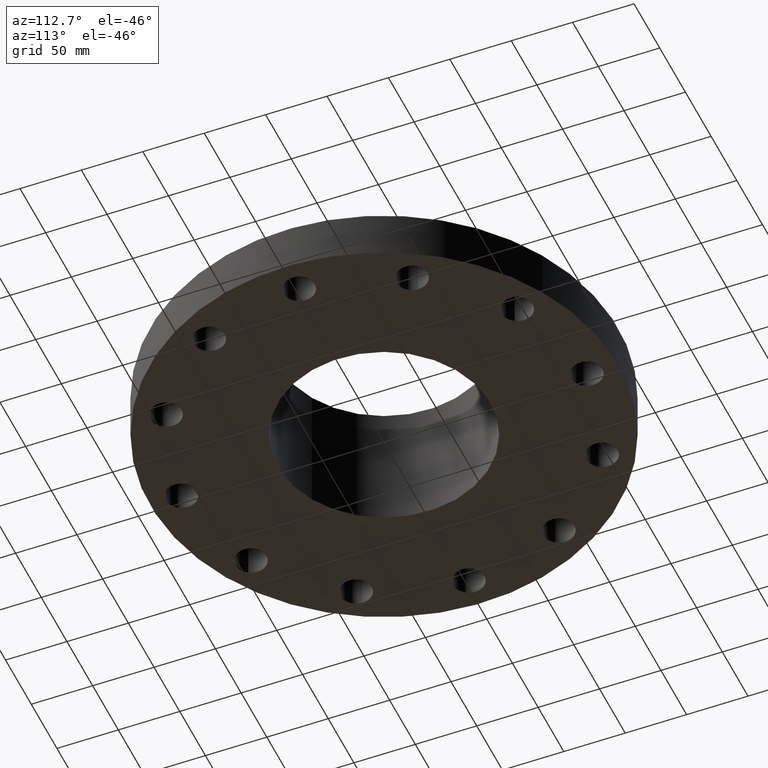
[diagram: clean part render]
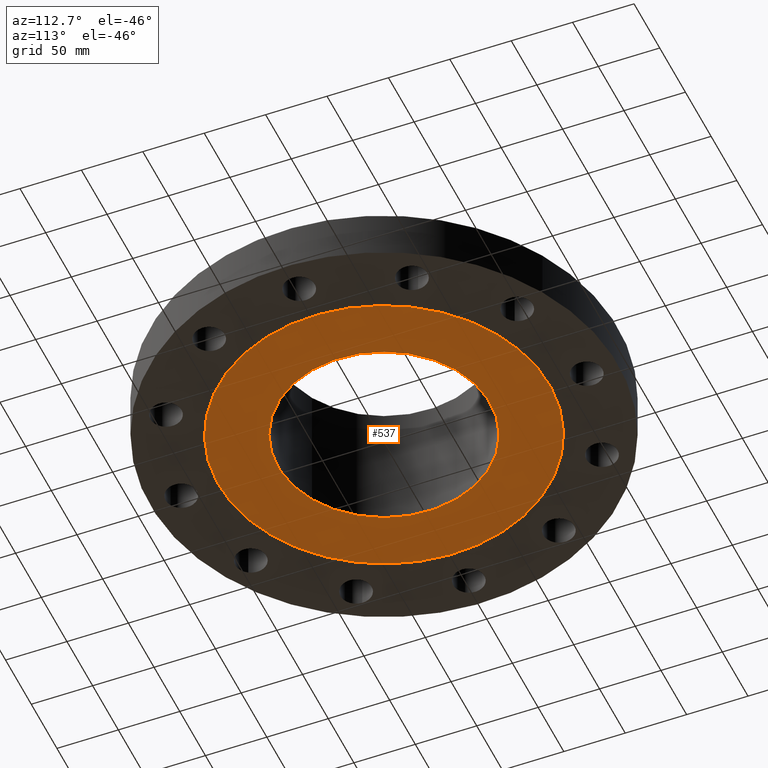
[diagram: same view with one face highlighted and labeled with its STEP entity id]
A machine part, auxiliary view. The second image highlights one B-rep face of the part: STEP entity #537.
In plain terms, the highlighted planar face has unit normal (0, 0, -1).
Its self-contained STEP definition (entity closure, byte-faithful):
#466=AXIS2_PLACEMENT_3D('Circle Axis2P3D',#464,#465,$) ;
#485=AXIS2_PLACEMENT_3D('Circle Axis2P3D',#483,#484,$) ;
#513=AXIS2_PLACEMENT_3D('Plane Axis2P3D',#510,#511,#512) ;
#517=AXIS2_PLACEMENT_3D('Circle Axis2P3D',#515,#516,$) ;
#526=AXIS2_PLACEMENT_3D('Circle Axis2P3D',#524,#525,$) ;
#461=CARTESIAN_POINT('Vertex',(-1.63316309726,-2.98948499709,-1.39870617276E-014)) ;
#464=CARTESIAN_POINT('Axis2P3D Location',(0.,0.,-1.39870617276E-014)) ;
#468=CARTESIAN_POINT('Vertex',(1.63316309726,2.98948499709,-1.39870617276E-014)) ;
#483=CARTESIAN_POINT('Axis2P3D Location',(0.,0.,-1.39870617276E-014)) ;
#510=CARTESIAN_POINT('Axis2P3D Location',(0.,3.40650000001,0.)) ;
#515=CARTESIAN_POINT('Axis2P3D Location',(0.,0.,0.)) ;
#519=CARTESIAN_POINT('Vertex',(-2.54574961,-4.65996340366,0.)) ;
#521=CARTESIAN_POINT('Vertex',(2.54574961,4.65996340366,0.)) ;
#524=CARTESIAN_POINT('Axis2P3D Location',(0.,0.,0.)) ;
#465=DIRECTION('Axis2P3D Direction',(0.,0.,-0.0393700787402)) ;
#484=DIRECTION('Axis2P3D Direction',(0.,0.,-0.0393700787402)) ;
#511=DIRECTION('Axis2P3D Direction',(0.,0.,-0.0393700787402)) ;
#512=DIRECTION('Axis2P3D XDirection',(0.0393700787402,0.,0.)) ;
#516=DIRECTION('Axis2P3D Direction',(0.,0.,-0.0393700787402)) ;
#525=DIRECTION('Axis2P3D Direction',(0.,0.,-0.0393700787402)) ;
#530=ORIENTED_EDGE('',*,*,#523,.T.) ;
#531=ORIENTED_EDGE('',*,*,#528,.T.) ;
#534=ORIENTED_EDGE('',*,*,#487,.F.) ;
#535=ORIENTED_EDGE('',*,*,#470,.F.) ;
#536=FACE_BOUND('',#533,.T.) ;
#537=ADVANCED_FACE('PartBody',(#532,#536),#514,.T.) ;
#467=CIRCLE('generated circle',#466,3.40650000001) ;
#486=CIRCLE('generated circle',#485,3.40650000001) ;
#518=CIRCLE('generated circle',#517,5.31000000002) ;
#527=CIRCLE('generated circle',#526,5.31000000002) ;
#470=EDGE_CURVE('',#462,#469,#467,.T.) ;
#487=EDGE_CURVE('',#469,#462,#486,.T.) ;
#523=EDGE_CURVE('',#520,#522,#518,.T.) ;
#528=EDGE_CURVE('',#522,#520,#527,.T.) ;
#529=EDGE_LOOP('',(#530,#531)) ;
#533=EDGE_LOOP('',(#534,#535)) ;
#532=FACE_OUTER_BOUND('',#529,.T.) ;
#514=PLANE('',#513) ;
#462=VERTEX_POINT('',#461) ;
#469=VERTEX_POINT('',#468) ;
#520=VERTEX_POINT('',#519) ;
#522=VERTEX_POINT('',#521) ;